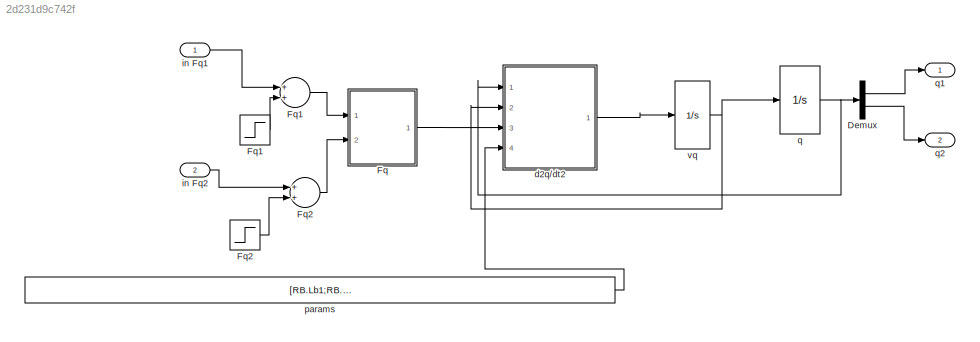
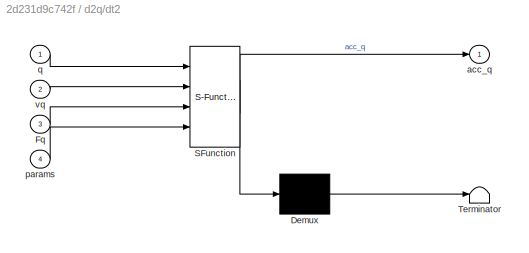
MODEL slx_2d231d9c742f
KIND model
CONFIG AbsTol = auto
CONFIG FixedStep = auto
CONFIG MaxStep = auto
CONFIG MinStep = auto
CONFIG RelTol = 1e-3
CONFIG SampleTimeConstraint = Unconstrained
CONFIG Solver = ode45
CONFIG SolverMode = Auto
CONFIG SolverName = ode45
CONFIG StartTime = 0.0
CONFIG StopTime = 10.0
BLOCK [Demux] Demux
  DisplayOption = bar
  Outputs = 2
  Ports = [1, 2]
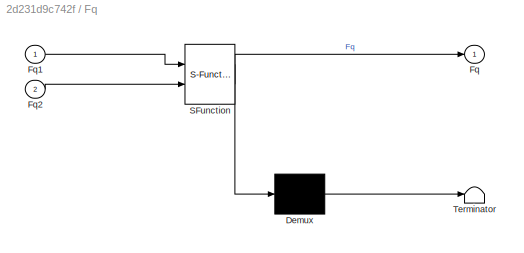
BLOCK [SubSystem] Fq
  ErrorFcn = Stateflow.Translate.translate
  PermitHierarchicalResolution = ParametersOnly
  Ports = [2, 1]
  RequestExecContextInheritance = off
  SFBlockType = MATLAB Function
  TreatAsAtomicUnit = on
  Variant = off
BLOCK [Demux] Fq/ Demux 
  Outputs = 1
  Ports = [1, 1]
BLOCK [S-Function] Fq/ SFunction 
  EnableBusSupport = off
  FunctionName = sf_sfun
  PortCounts = [2 2]
  Ports = [2, 2]
  SFunctionDeploymentMode = off
  Tag = Stateflow S-Function schema_robot2015a 1
BLOCK [Terminator] Fq/ Terminator 
BLOCK [Outport] Fq/Fq
  IconDisplay = Port number
BLOCK [Inport] Fq/Fq1
  IconDisplay = Port number
BLOCK [Inport] Fq/Fq2
  IconDisplay = Port number
  Port = 2
BLOCK [Step] Fq1  
  After = RB.Fq1_1
  Before = RB.Fq1_0
  SampleTime = 0
  Time = RB.t_Fq1
BLOCK [Sum] Fq1   
  InputSameDT = off
  OutDataTypeStr = Inherit: Inherit via internal rule
  Ports = [2, 1]
  SaturateOnIntegerOverflow = off
BLOCK [Step] Fq2 
  After = RB.Fq2_1
  Before = RB.Fq2_0
  SampleTime = 0
  Time = RB.t_Fq2
BLOCK [Sum] Fq2   
  InputSameDT = off
  OutDataTypeStr = Inherit: Inherit via internal rule
  Ports = [2, 1]
  SaturateOnIntegerOverflow = off
BLOCK [SubSystem] d2q//dt2
  ErrorFcn = Stateflow.Translate.translate
  PermitHierarchicalResolution = ParametersOnly
  Ports = [4, 1]
  RequestExecContextInheritance = off
  SFBlockType = MATLAB Function
  TreatAsAtomicUnit = on
  Variant = off
BLOCK [Demux] d2q//dt2/ Demux 
  Outputs = 1
  Ports = [1, 1]
BLOCK [S-Function] d2q//dt2/ SFunction 
  EnableBusSupport = off
  FunctionName = sf_sfun
  PortCounts = [4 2]
  Ports = [4, 2]
  SFunctionDeploymentMode = off
  Tag = Stateflow S-Function schema_robot2015a 2
BLOCK [Terminator] d2q//dt2/ Terminator 
BLOCK [Inport] d2q//dt2/Fq
  IconDisplay = Port number
  Port = 3
BLOCK [Outport] d2q//dt2/acc_q
  IconDisplay = Port number
BLOCK [Inport] d2q//dt2/params
  IconDisplay = Port number
  Port = 4
BLOCK [Inport] d2q//dt2/q
  IconDisplay = Port number
BLOCK [Inport] d2q//dt2/vq
  IconDisplay = Port number
  Port = 2
BLOCK [Inport] in Fq1
  IconDisplay = Port number
BLOCK [Inport] in Fq2
  IconDisplay = Port number
  Port = 2
BLOCK [Constant] params
  Value = [RB.Lb1;RB.Lb2;RB.Mb1;RB.Mb2;RB.Ixb1;RB.Iyb1;RB.Izb1;RB.Ixb2;RB.Iyb2;RB.Izb2;RB.fm1;RB.fm2;RB.foutil;RB.G]
BLOCK [Integrator] q
  ContinuousStateAttributes = 'q'
  InitialCondition = [RB.q1_init;RB.q2_init]
  Ports = [1, 1]
BLOCK [Outport] q1
  IconDisplay = Port number
BLOCK [Outport] q2
  IconDisplay = Port number
  Port = 2
BLOCK [Integrator] vq
  ContinuousStateAttributes = 'vq'
  InitialCondition = [RB.vq1_init;RB.vq2_init]
  Ports = [1, 1]
LINE Demux:1 -> q1:1
LINE Demux:2 -> q2:1
LINE Fq1   :1 -> Fq:1
LINE Fq1  :1 -> Fq1   :2
LINE Fq2   :1 -> Fq:2
LINE Fq2 :1 -> Fq2   :2
LINE Fq:1 -> d2q//dt2:3
LINE d2q//dt2:1 -> vq:1
LINE in Fq1:1 -> Fq1   :1
LINE in Fq2:1 -> Fq2   :1
LINE params:1 -> d2q//dt2:4
NET q:1 -> Demux:1, d2q//dt2:1
NET vq:1 -> d2q//dt2:2, q:1
note: NET lines group one-source signal fan-out (src -> all destinations, sorted); 1:1 wires keep LINE
CHART Fq states=1 transitions=1
  STATE_LABEL 'eML_blk_kernel()'
  STATE_LABEL 'SCRIPT:\nfunction Fq=Fq_(Fq1,Fq2)\n    Fq=[Fq1;Fq2];\nend'
CHART d2q//dt2 states=1 transitions=1
  STATE_LABEL 'eML_blk_kernel()'
  STATE_LABEL 'SCRIPT:\nfunction acc_q=clc_accq(q,vq,Fq,params)\n    q1=q(1);    \n    q2=q(2);\n    vq1=vq(1);\n    vq2=vq(2);\n    Lb1=params(1);\n    Lb2=params(2);\n    Mb1=params(3);\n    Mb2=params(4);\n    Ixb1=params(5);\n    Iyb1=params(6);\n    Izb1=params(7);\n    Ixb2=params(8);\n    Iyb2=params(9);\n    Izb2=params(10);\n    fm1=params(11);\n    fm2=params(12);\n    foutil=params(13);\n    G=params(14);\n    A= clc_A(q...<+191ch>'
